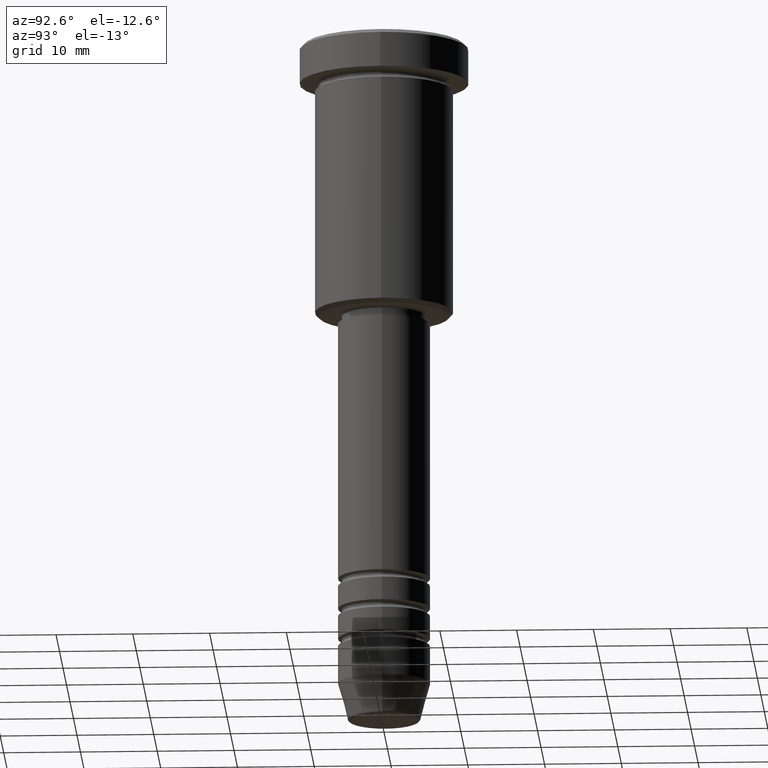
[diagram: clean part render]
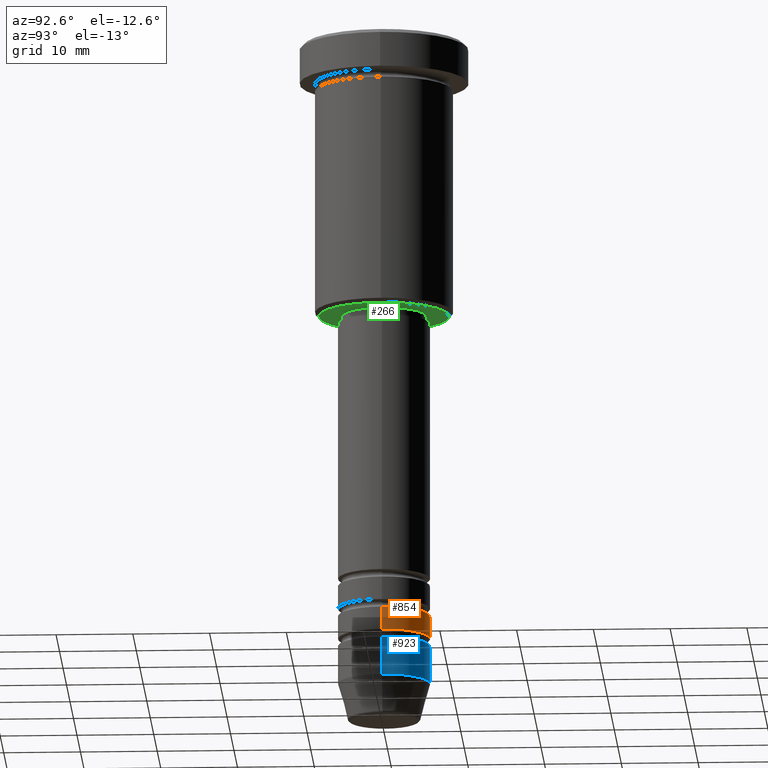
[diagram: same view with three faces highlighted in distinct colors, each labeled with its STEP entity id]
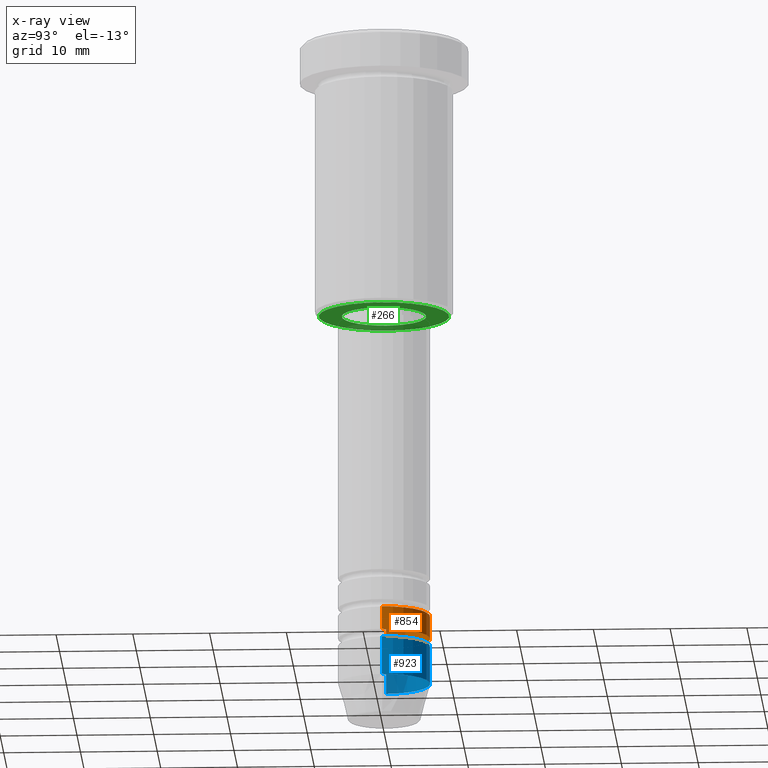
[diagram: x-ray of the same camera — body ghosted, the three highlighted faces saturated]
A machine part, auxiliary view with three faces highlighted in distinct colors.
The next image is the same camera in x-ray (body ghosted, the three faces saturated) — at least one of them is partly hidden behind the body in this view.
Their STEP definitions:

[orange] entity #854 — the highlighted cylindrical surface (partial cylindrical patch) has radius 6 mm, axis along (-0, -0, 1).
#42 = CARTESIAN_POINT ( 'NONE',  ( 5.999999999999999112, 0.000000000000000000, -75.99999999999998579 ) ) ;
#59 = CYLINDRICAL_SURFACE ( 'NONE', #1127, 6.000000000000000000 ) ;
#63 = FACE_OUTER_BOUND ( 'NONE', #1049, .T. ) ;
#130 = DIRECTION ( 'NONE',  ( 1.000000000000000000, 0.000000000000000000, 0.000000000000000000 ) ) ;
#136 = ORIENTED_EDGE ( 'NONE', *, *, #311, .F. ) ;
#226 = CARTESIAN_POINT ( 'NONE',  ( 0.000000000000000000, 0.000000000000000000, -75.99999999999998579 ) ) ;
#279 = EDGE_CURVE ( 'NONE', #1036, #423, #573, .T. ) ;
#311 = EDGE_CURVE ( 'NONE', #423, #480, #1085, .T. ) ;
#348 = CARTESIAN_POINT ( 'NONE',  ( -5.999999999999999112, 7.347880794884118750E-16, -75.99999999999998579 ) ) ;
#363 = EDGE_CURVE ( 'NONE', #636, #480, #1147, .T. ) ;
#392 = VECTOR ( 'NONE', #871, 1000.000000000000000 ) ;
#397 = CARTESIAN_POINT ( 'NONE',  ( 0.000000000000000000, 0.000000000000000000, -78.99999999999997158 ) ) ;
#423 = VERTEX_POINT ( 'NONE', #42 ) ;
#446 = AXIS2_PLACEMENT_3D ( 'NONE', #226, #965, #130 ) ;
#480 = VERTEX_POINT ( 'NONE', #348 ) ;
#510 = CARTESIAN_POINT ( 'NONE',  ( 6.000000000000000000, 0.000000000000000000, -78.99999999999997158 ) ) ;
#573 = LINE ( 'NONE', #943, #673 ) ;
#591 = DIRECTION ( 'NONE',  ( -0.000000000000000000, -0.000000000000000000, 1.000000000000000000 ) ) ;
#602 = CIRCLE ( 'NONE', #952, 6.000000000000000000 ) ;
#636 = VERTEX_POINT ( 'NONE', #1028 ) ;
#673 = VECTOR ( 'NONE', #1131, 1000.000000000000000 ) ;
#689 = CARTESIAN_POINT ( 'NONE',  ( 0.000000000000000000, 0.000000000000000000, 0.000000000000000000 ) ) ;
#695 = DIRECTION ( 'NONE',  ( -0.000000000000000000, -0.000000000000000000, 1.000000000000000000 ) ) ;
#729 = EDGE_CURVE ( 'NONE', #1036, #636, #602, .T. ) ;
#744 = ORIENTED_EDGE ( 'NONE', *, *, #729, .T. ) ;
#764 = ORIENTED_EDGE ( 'NONE', *, *, #363, .T. ) ;
#766 = DIRECTION ( 'NONE',  ( 1.000000000000000000, 0.000000000000000000, 0.000000000000000000 ) ) ;
#854 = ADVANCED_FACE ( 'NONE', ( #63 ), #59, .T. ) ;
#871 = DIRECTION ( 'NONE',  ( -0.000000000000000000, -0.000000000000000000, 1.000000000000000000 ) ) ;
#943 = CARTESIAN_POINT ( 'NONE',  ( 6.000000000000000000, 0.000000000000000000, 0.000000000000000000 ) ) ;
#952 = AXIS2_PLACEMENT_3D ( 'NONE', #397, #591, #766 ) ;
#961 = CARTESIAN_POINT ( 'NONE',  ( -6.000000000000000000, 7.347880794884119736E-16, 0.000000000000000000 ) ) ;
#965 = DIRECTION ( 'NONE',  ( -0.000000000000000000, -0.000000000000000000, 1.000000000000000000 ) ) ;
#1028 = CARTESIAN_POINT ( 'NONE',  ( -6.000000000000000000, 7.347880794884119736E-16, -78.99999999999997158 ) ) ;
#1036 = VERTEX_POINT ( 'NONE', #510 ) ;
#1049 = EDGE_LOOP ( 'NONE', ( #744, #764, #136, #1098 ) ) ;
#1070 = DIRECTION ( 'NONE',  ( 1.000000000000000000, 0.000000000000000000, 0.000000000000000000 ) ) ;
#1085 = CIRCLE ( 'NONE', #446, 5.999999999999999112 ) ;
#1098 = ORIENTED_EDGE ( 'NONE', *, *, #279, .F. ) ;
#1127 = AXIS2_PLACEMENT_3D ( 'NONE', #689, #695, #1070 ) ;
#1131 = DIRECTION ( 'NONE',  ( -0.000000000000000000, -0.000000000000000000, 1.000000000000000000 ) ) ;
#1147 = LINE ( 'NONE', #961, #392 ) ;

[blue] entity #923 — the highlighted cylindrical surface (partial cylindrical patch) has radius 6 mm, axis along (-0, -0, 1).
#6 = DIRECTION ( 'NONE',  ( 1.000000000000000000, 0.000000000000000000, 0.000000000000000000 ) ) ;
#32 = CARTESIAN_POINT ( 'NONE',  ( 6.000000000000000000, 0.000000000000000000, 0.000000000000000000 ) ) ;
#56 = ORIENTED_EDGE ( 'NONE', *, *, #291, .T. ) ;
#123 = DIRECTION ( 'NONE',  ( 1.000000000000000000, 0.000000000000000000, 0.000000000000000000 ) ) ;
#131 = CARTESIAN_POINT ( 'NONE',  ( 6.000000000000000000, 0.000000000000000000, -84.99999999999998579 ) ) ;
#210 = DIRECTION ( 'NONE',  ( -0.000000000000000000, -0.000000000000000000, 1.000000000000000000 ) ) ;
#241 = EDGE_CURVE ( 'NONE', #512, #1000, #1033, .T. ) ;
#247 = CYLINDRICAL_SURFACE ( 'NONE', #892, 6.000000000000000000 ) ;
#276 = CARTESIAN_POINT ( 'NONE',  ( -6.000000000000000000, 7.347880794884119736E-16, -84.99999999999998579 ) ) ;
#291 = EDGE_CURVE ( 'NONE', #720, #512, #336, .T. ) ;
#294 = CARTESIAN_POINT ( 'NONE',  ( -6.000000000000000000, 7.347880794884119736E-16, 0.000000000000000000 ) ) ;
#297 = AXIS2_PLACEMENT_3D ( 'NONE', #481, #458, #6 ) ;
#300 = VECTOR ( 'NONE', #210, 1000.000000000000000 ) ;
#336 = CIRCLE ( 'NONE', #297, 6.000000000000000000 ) ;
#458 = DIRECTION ( 'NONE',  ( -0.000000000000000000, -0.000000000000000000, 1.000000000000000000 ) ) ;
#481 = CARTESIAN_POINT ( 'NONE',  ( 0.000000000000000000, 0.000000000000000000, -84.99999999999998579 ) ) ;
#512 = VERTEX_POINT ( 'NONE', #276 ) ;
#538 = DIRECTION ( 'NONE',  ( 1.000000000000000000, 0.000000000000000000, 0.000000000000000000 ) ) ;
#545 = VECTOR ( 'NONE', #844, 1000.000000000000000 ) ;
#553 = EDGE_LOOP ( 'NONE', ( #56, #740, #1102, #1019 ) ) ;
#682 = EDGE_CURVE ( 'NONE', #926, #1000, #696, .T. ) ;
#696 = CIRCLE ( 'NONE', #814, 5.999999999999999112 ) ;
#718 = CARTESIAN_POINT ( 'NONE',  ( 5.999999999999999112, 0.000000000000000000, -79.99999999999998579 ) ) ;
#720 = VERTEX_POINT ( 'NONE', #131 ) ;
#740 = ORIENTED_EDGE ( 'NONE', *, *, #241, .T. ) ;
#754 = CARTESIAN_POINT ( 'NONE',  ( 0.000000000000000000, 0.000000000000000000, -79.99999999999998579 ) ) ;
#814 = AXIS2_PLACEMENT_3D ( 'NONE', #754, #1039, #123 ) ;
#823 = EDGE_CURVE ( 'NONE', #720, #926, #1034, .T. ) ;
#844 = DIRECTION ( 'NONE',  ( -0.000000000000000000, -0.000000000000000000, 1.000000000000000000 ) ) ;
#892 = AXIS2_PLACEMENT_3D ( 'NONE', #1170, #1083, #538 ) ;
#923 = ADVANCED_FACE ( 'NONE', ( #989 ), #247, .T. ) ;
#926 = VERTEX_POINT ( 'NONE', #718 ) ;
#989 = FACE_OUTER_BOUND ( 'NONE', #553, .T. ) ;
#1000 = VERTEX_POINT ( 'NONE', #1002 ) ;
#1002 = CARTESIAN_POINT ( 'NONE',  ( -5.999999999999999112, 7.347880794884118750E-16, -79.99999999999998579 ) ) ;
#1019 = ORIENTED_EDGE ( 'NONE', *, *, #823, .F. ) ;
#1033 = LINE ( 'NONE', #294, #545 ) ;
#1034 = LINE ( 'NONE', #32, #300 ) ;
#1039 = DIRECTION ( 'NONE',  ( -0.000000000000000000, -0.000000000000000000, 1.000000000000000000 ) ) ;
#1083 = DIRECTION ( 'NONE',  ( -0.000000000000000000, -0.000000000000000000, 1.000000000000000000 ) ) ;
#1102 = ORIENTED_EDGE ( 'NONE', *, *, #682, .F. ) ;
#1170 = CARTESIAN_POINT ( 'NONE',  ( 0.000000000000000000, 0.000000000000000000, 0.000000000000000000 ) ) ;

[green] entity #266 — the highlighted planar face has unit normal (0, 0, -1).
#2 = CARTESIAN_POINT ( 'NONE',  ( 8.499999999999992895, 0.000000000000000000, -36.00000000000000000 ) ) ;
#11 = CIRCLE ( 'NONE', #261, 5.499999999999999112 ) ;
#18 = ORIENTED_EDGE ( 'NONE', *, *, #873, .T. ) ;
#27 = ORIENTED_EDGE ( 'NONE', *, *, #631, .T. ) ;
#36 = VERTEX_POINT ( 'NONE', #2 ) ;
#75 = DIRECTION ( 'NONE',  ( 0.000000000000000000, 0.000000000000000000, -1.000000000000000000 ) ) ;
#96 = CARTESIAN_POINT ( 'NONE',  ( 0.000000000000000000, 0.000000000000000000, -36.00000000000000000 ) ) ;
#99 = EDGE_LOOP ( 'NONE', ( #936, #18 ) ) ;
#146 = CARTESIAN_POINT ( 'NONE',  ( 0.000000000000000000, 0.000000000000000000, -36.00000000000000000 ) ) ;
#152 = CARTESIAN_POINT ( 'NONE',  ( 5.499999999999999112, 0.000000000000000000, -36.00000000000000000 ) ) ;
#195 = FACE_OUTER_BOUND ( 'NONE', #214, .T. ) ;
#214 = EDGE_LOOP ( 'NONE', ( #645, #27 ) ) ;
#240 = CIRCLE ( 'NONE', #775, 5.499999999999999112 ) ;
#248 = EDGE_CURVE ( 'NONE', #881, #332, #11, .T. ) ;
#250 = CARTESIAN_POINT ( 'NONE',  ( 0.000000000000000000, 0.000000000000000000, -36.00000000000000000 ) ) ;
#261 = AXIS2_PLACEMENT_3D ( 'NONE', #96, #1022, #1119 ) ;
#266 = ADVANCED_FACE ( 'NONE', ( #195, #664 ), #560, .T. ) ;
#285 = CARTESIAN_POINT ( 'NONE',  ( 0.000000000000000000, 9.000000000000000000, -36.00000000000000000 ) ) ;
#332 = VERTEX_POINT ( 'NONE', #1139 ) ;
#449 = CIRCLE ( 'NONE', #997, 8.499999999999992895 ) ;
#557 = DIRECTION ( 'NONE',  ( -1.000000000000000000, 0.000000000000000000, 0.000000000000000000 ) ) ;
#560 = PLANE ( 'NONE',  #596 ) ;
#596 = AXIS2_PLACEMENT_3D ( 'NONE', #285, #838, #747 ) ;
#631 = EDGE_CURVE ( 'NONE', #985, #36, #794, .T. ) ;
#645 = ORIENTED_EDGE ( 'NONE', *, *, #1181, .T. ) ;
#664 = FACE_BOUND ( 'NONE', #99, .T. ) ;
#710 = CARTESIAN_POINT ( 'NONE',  ( -8.499999999999992895, 1.071565949253933532E-15, -36.00000000000000000 ) ) ;
#713 = DIRECTION ( 'NONE',  ( -1.000000000000000000, 0.000000000000000000, 0.000000000000000000 ) ) ;
#747 = DIRECTION ( 'NONE',  ( -1.000000000000000000, 0.000000000000000000, -0.000000000000000000 ) ) ;
#775 = AXIS2_PLACEMENT_3D ( 'NONE', #146, #789, #1156 ) ;
#789 = DIRECTION ( 'NONE',  ( -0.000000000000000000, -0.000000000000000000, 1.000000000000000000 ) ) ;
#794 = CIRCLE ( 'NONE', #890, 8.499999999999992895 ) ;
#838 = DIRECTION ( 'NONE',  ( 0.000000000000000000, 0.000000000000000000, -1.000000000000000000 ) ) ;
#839 = DIRECTION ( 'NONE',  ( 0.000000000000000000, 0.000000000000000000, -1.000000000000000000 ) ) ;
#873 = EDGE_CURVE ( 'NONE', #332, #881, #240, .T. ) ;
#881 = VERTEX_POINT ( 'NONE', #152 ) ;
#890 = AXIS2_PLACEMENT_3D ( 'NONE', #919, #839, #557 ) ;
#919 = CARTESIAN_POINT ( 'NONE',  ( 0.000000000000000000, 0.000000000000000000, -36.00000000000000000 ) ) ;
#936 = ORIENTED_EDGE ( 'NONE', *, *, #248, .T. ) ;
#985 = VERTEX_POINT ( 'NONE', #710 ) ;
#997 = AXIS2_PLACEMENT_3D ( 'NONE', #250, #75, #713 ) ;
#1022 = DIRECTION ( 'NONE',  ( -0.000000000000000000, -0.000000000000000000, 1.000000000000000000 ) ) ;
#1119 = DIRECTION ( 'NONE',  ( 1.000000000000000000, 0.000000000000000000, 0.000000000000000000 ) ) ;
#1139 = CARTESIAN_POINT ( 'NONE',  ( -5.499999999999999112, 6.735557395310441037E-16, -36.00000000000000000 ) ) ;
#1156 = DIRECTION ( 'NONE',  ( 1.000000000000000000, 0.000000000000000000, 0.000000000000000000 ) ) ;
#1181 = EDGE_CURVE ( 'NONE', #36, #985, #449, .T. ) ;